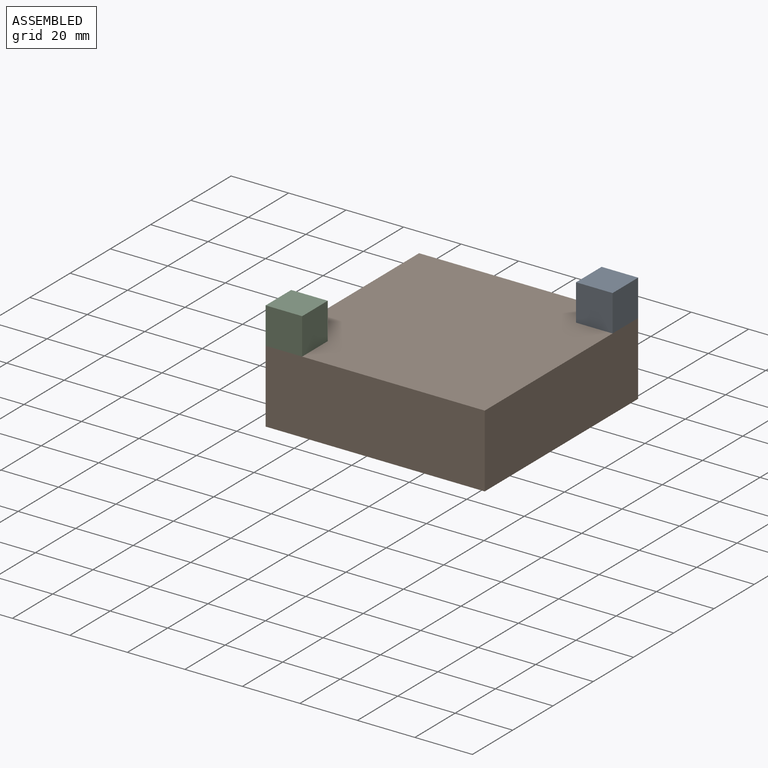
[diagram: assembled view]
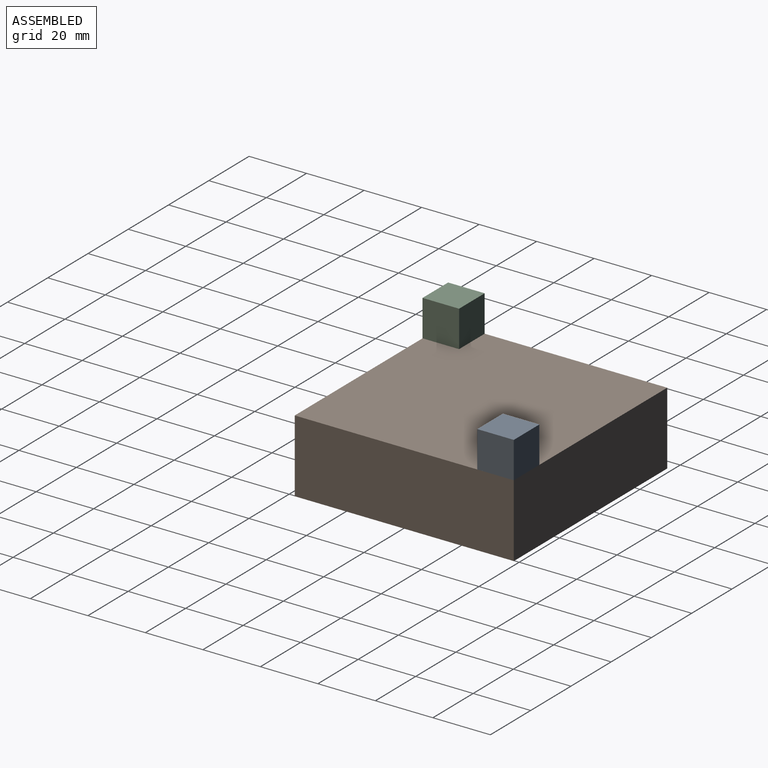
[diagram: assembled view, second angle]
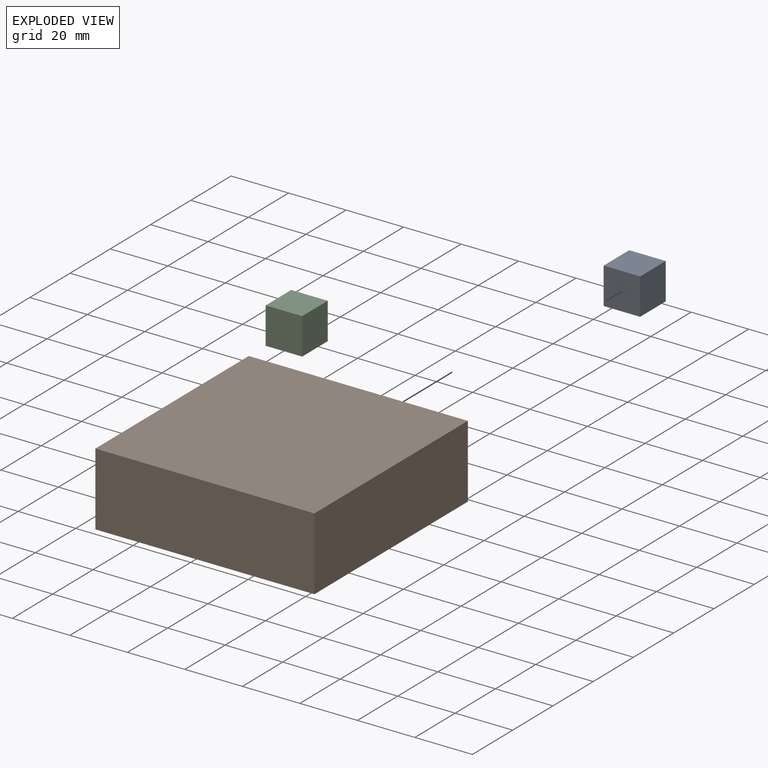
[diagram: exploded view]
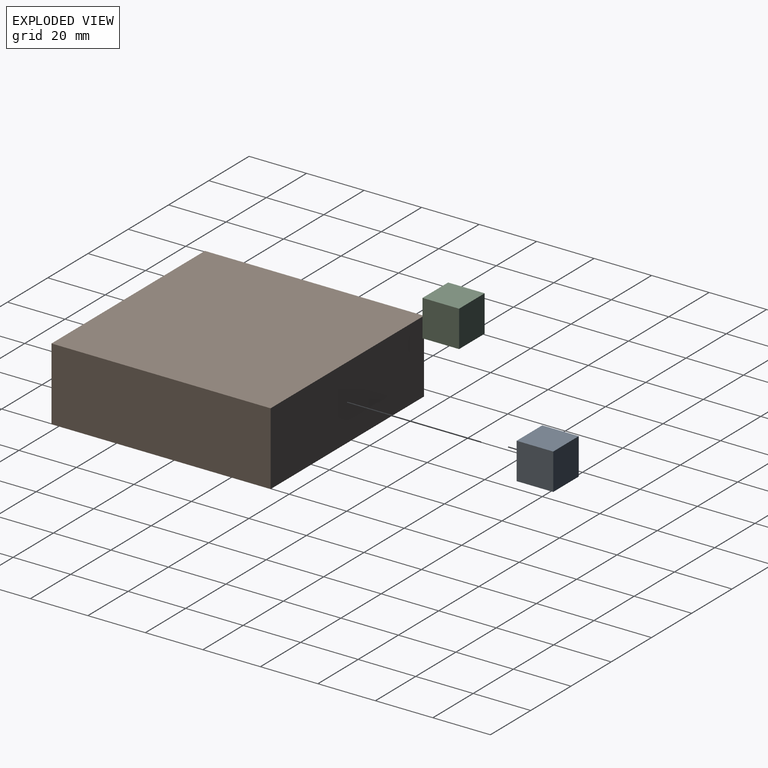
[diagram: exploded view, second angle]
ASSEMBLY  parts=3 mates=4
PART A: 6 faces, bbox 12.7x12.7x12.7 mm
  f0: plane 12.7x12.7mm, normal (0,-1,0), area 161.3mm2, adj f1,f3,f4,f5
  f1: plane 12.7x12.7mm, normal (1,0,0), area 161.3mm2, adj f0,f2,f4,f5
  f2: plane 12.7x12.7mm, normal (0,1,0), area 161.3mm2, adj f1,f3,f4,f5
  f3: plane 12.7x12.7mm, normal (-1,0,0), area 161.3mm2, adj f0,f2,f4,f5
  f4: plane 12.7x12.7mm, normal (0,0,1), area 161.3mm2, adj f0,f1,f2,f3
  f5: plane 12.7x12.7mm, normal (0,0,-1), area 161.3mm2, adj f0,f1,f2,f3
PART B: 6 faces, bbox 76.2x76.2x25.4 mm
  f0: plane 76.2x25.4mm, normal (1,0,0), area 1935.5mm2, adj f1,f3,f4,f5
  f1: plane 76.2x25.4mm, normal (0,1,0), area 1935.5mm2, adj f0,f2,f4,f5
  f2: plane 76.2x25.4mm, normal (-1,0,0), area 1935.5mm2, adj f1,f3,f4,f5
  f3: plane 76.2x25.4mm, normal (0,-1,0), area 1935.5mm2, adj f0,f2,f4,f5
  f4: plane 76.2x76.2mm, normal (0,0,1), area 5806.4mm2, adj f0,f1,f2,f3
  f5: plane 76.2x76.2mm, normal (0,0,-1), area 5806.4mm2, adj f0,f1,f2,f3
PART C: same geometry as A
PLACE A t=(16.94,14.09,13.7)mm
PLACE B t=(-14.81,-17.66,-11.7)mm
PLACE C rot(axis=(1,0,0),180deg) t=(-46.56,-49.41,26.4)mm
MATE fastened B.f1 <-> A.f2  axis (0,1,0) through (23.29,20.44,13.7)mm
MATE planar C.f4 <-> B.f4  axis (0,0,-1) through (-40.21,-43.06,13.7)mm
MATE planar A.f5 <-> B.f4  axis (0,0,-1) through (16.94,14.09,13.7)mm
MATE fastened C.f4 <-> B.f4  axis (0,0,-1) through (-52.91,-55.76,13.7)mm
